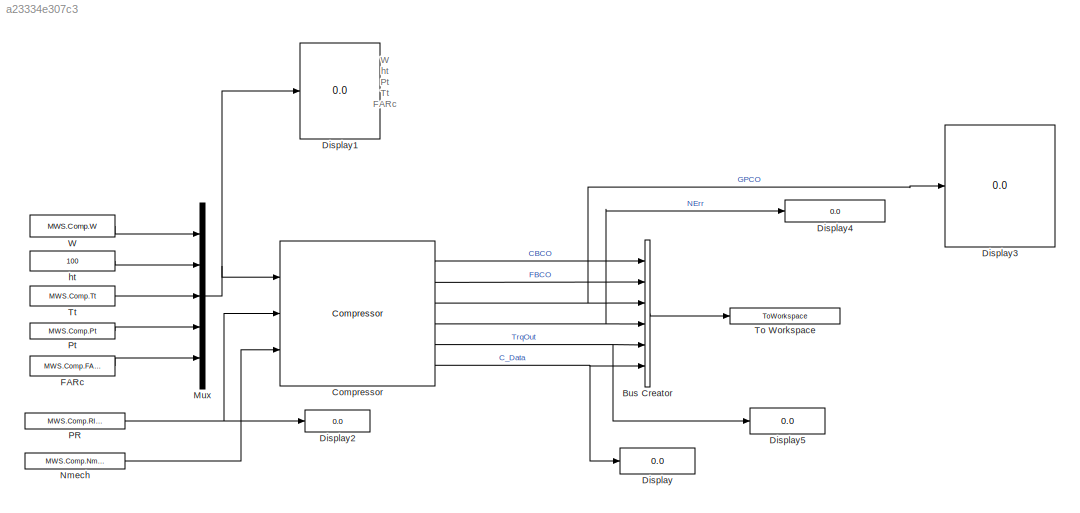
MODEL slx_a23334e307c3
KIND model
CONFIG AbsTol = auto
CONFIG EnableMultiTasking = on
CONFIG FixedStep = 1
CONFIG MaxStep = auto
CONFIG MinStep = auto
CONFIG RelTol = 1e-3
CONFIG SampleTimeConstraint = Unconstrained
CONFIG Solver = FixedStepDiscrete
CONFIG SolverName = FixedStepDiscrete
CONFIG StartTime = 0.0
CONFIG StopTime = 1
BLOCK [BusCreator] Bus Creator
  DisplayOption = bar
  InheritFromInputs = on
  Inputs = 6
  Ports = [6, 1]
BLOCK [Reference] Compressor  REF=Lib_Turbo_Compressor_TMATS/Compressor
  Ports = [3, 6]
  SourceBlock = Lib_Turbo_Compressor_TMATS/Compressor
  SourceType = T-MATS: Compressor Library Block
BLOCK [Display] Display
  Decimation = 1
  Ports = [1]
BLOCK [Display] Display1
  Decimation = 1
  Ports = [1]
BLOCK [Display] Display2
  Decimation = 1
  Ports = [1]
BLOCK [Display] Display3
  Decimation = 1
  Format = long
  Ports = [1]
BLOCK [Display] Display4
  Decimation = 1
  Format = long
  Ports = [1]
BLOCK [Display] Display5
  Decimation = 1
  Ports = [1]
BLOCK [Constant] FARc
  Value = MWS.Comp.FARc
BLOCK [Mux] Mux
  DisplayOption = bar
  Inputs = 5
  Ports = [5, 1]
BLOCK [Constant] Nmech
  Value = MWS.Comp.Nmech
BLOCK [Constant] PR
  Value = MWS.Comp.Rline
BLOCK [Constant] Pt
  Value = MWS.Comp.Pt
BLOCK [ToWorkspace] To Workspace
  MaxDataPoints = inf
  Ports = [1]
  SampleTime = -1
  VariableName = TB_Output
BLOCK [Constant] Tt
  Value = MWS.Comp.Tt
BLOCK [Constant] W
  Value = MWS.Comp.W
BLOCK [Constant] ht
  Value = 100
ANNOTATION (root): W ht Pt Tt FARc
LINE Bus Creator:1 -> To Workspace:1
LINE Compressor:1 -> Bus Creator:1
LINE Compressor:2 -> Bus Creator:2
NET Compressor:3 -> Bus Creator:3, Display3:1
NET Compressor:4 -> Bus Creator:4, Display4:1
NET Compressor:5 -> Bus Creator:5, Display5:1
NET Compressor:6 -> Bus Creator:6, Display:1
LINE FARc:1 -> Mux:5
NET Mux:1 -> Compressor:1, Display1:1
LINE Nmech:1 -> Compressor:3
NET PR:1 -> Compressor:2, Display2:1
LINE Pt:1 -> Mux:4
LINE Tt:1 -> Mux:3
LINE W:1 -> Mux:1
LINE ht:1 -> Mux:2
note: NET lines group one-source signal fan-out (src -> all destinations, sorted); 1:1 wires keep LINE
